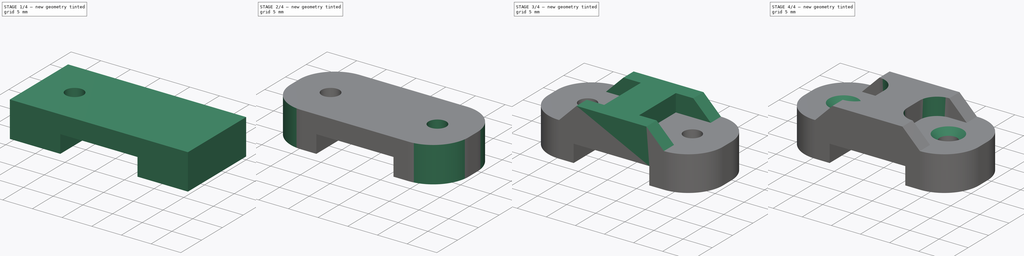
[diagram: build sequence overview — one tinted view per stage of 4, left to right]
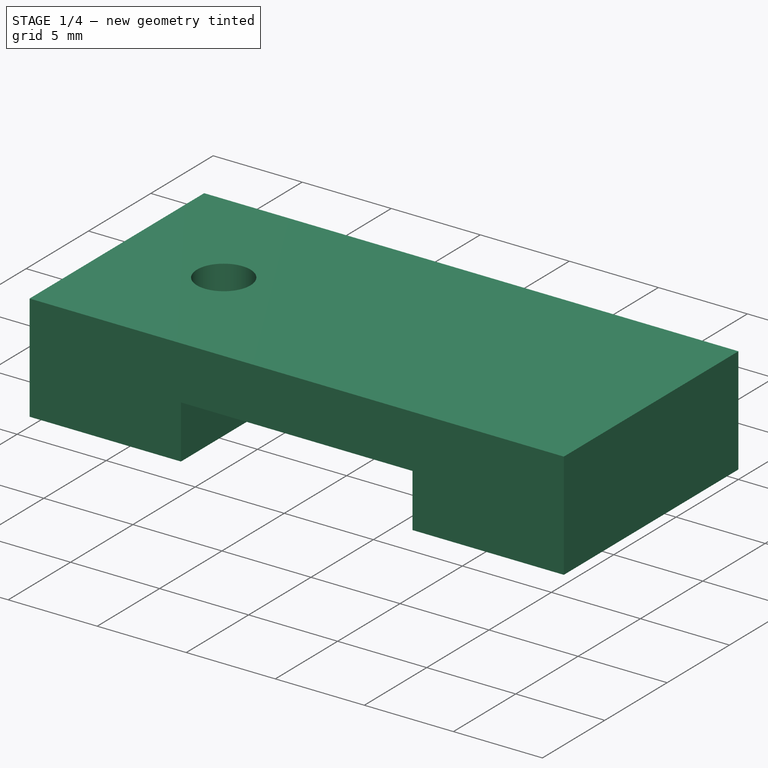
[diagram: stage 1 of 4 — iso view after this stage's code; geometry added in this stage tinted green]
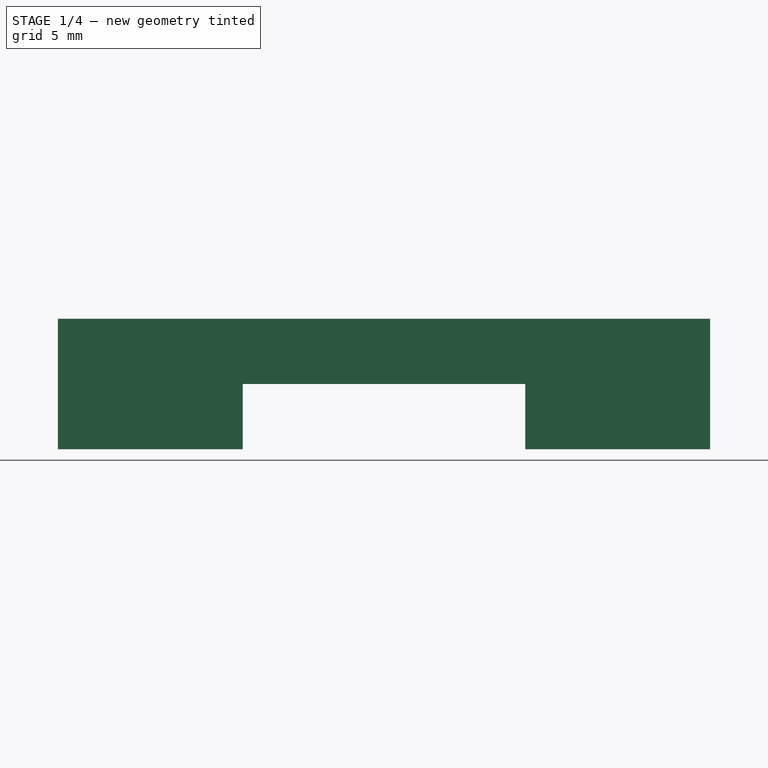
[diagram: stage 1 of 4 — front view after this stage's code; geometry added in this stage tinted green]
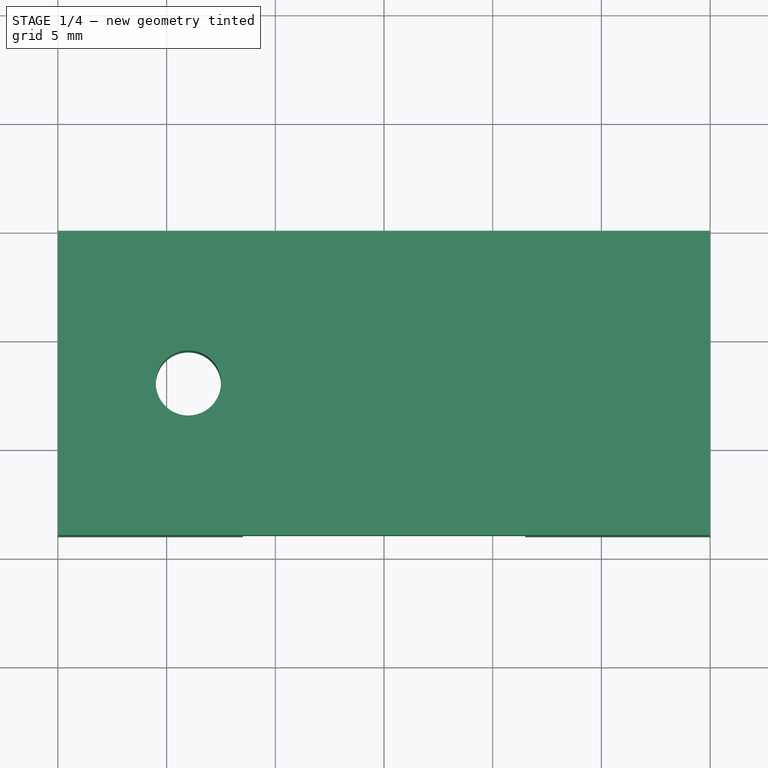
[diagram: stage 1 of 4 — top view after this stage's code; geometry added in this stage tinted green]
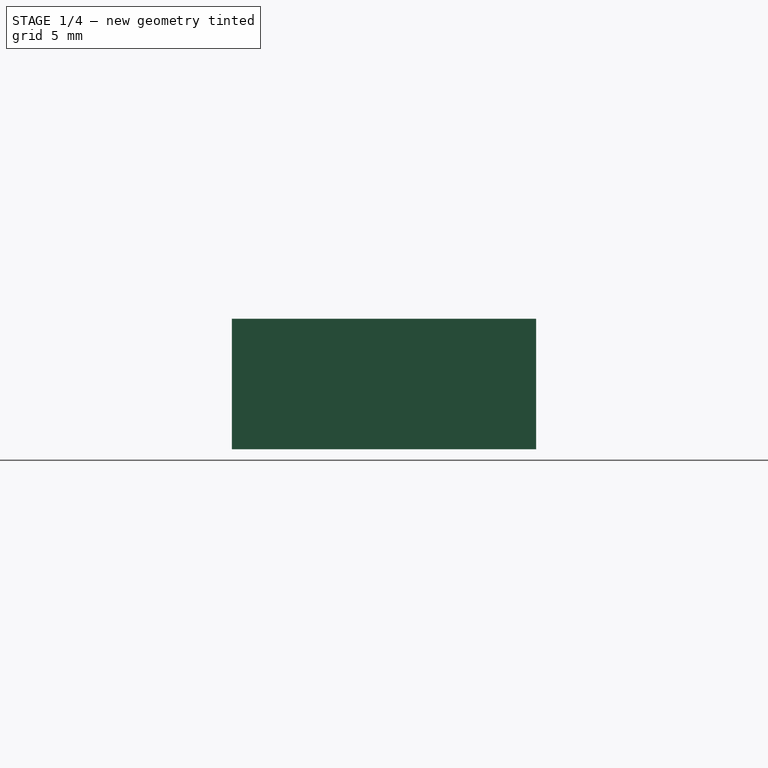
[diagram: stage 1 of 4 — right view after this stage's code; geometry added in this stage tinted green]
FCSTD DOCUMENT  (FreeCAD 1.0R38641 +468 (Git))
Label: 01GT5belttensionner
License: All rights reserved
LicenseURL: https://en.wikipedia.org/wiki/All_rights_reserved
objects: Sketcher::SketchObject×4, PartDesign::Pad×2, PartDesign::Plane×2, PartDesign::Pocket×2, PartDesign::Mirrored×2, PartDesign::Fillet×2, PartDesign::Chamfer×1, PartDesign::Body×1
note: 36 computed .brp shape members not serialized (recipe doc carries the construction recipe); baked Part::Feature solids carry a one-line shape summary decoded from their .brp

FEATURE [Sketcher::SketchObject] Sketch
  ArcFitTolerance = 1e-06
  AttachmentSupport = -> [XZ_Plane]
  FullyConstrained = false
  MakeInternals = false
  MapMode = 5
  Placement = pos=(0,0,0) rot=(1,0,0;1.5708rad)
  sketch-geometry (11):
    g0: LineSegment StartX=15 StartY=-3 StartZ=0 EndX=15 EndY=3 EndZ=0
    g1: LineSegment StartX=15 StartY=3 StartZ=0 EndX=-15 EndY=3 EndZ=0
    g2: LineSegment StartX=-15 StartY=3 StartZ=0 EndX=-15 EndY=-3 EndZ=0
    g3: GeomPoint [constr] X=3e-16 Y=0 Z=0
    g4: GeomPoint [constr] X=3e-16 Y=0 Z=0
    g5: LineSegment StartX=6.5 StartY=-3 StartZ=0 EndX=6.5 EndY=-2.092e-13 EndZ=0
    g6: LineSegment StartX=6.5 StartY=-2.092e-13 StartZ=0 EndX=-6.5 EndY=-2.092e-13 EndZ=0
    g7: LineSegment StartX=-6.5 StartY=-2.092e-13 StartZ=0 EndX=-6.5 EndY=-3 EndZ=0
    g8: GeomPoint [constr] X=0 Y=-1 Z=0
    g9: LineSegment StartX=-15 StartY=-3 StartZ=0 EndX=-6.5 EndY=-3 EndZ=0
    g10: LineSegment StartX=6.5 StartY=-3 StartZ=0 EndX=15 EndY=-3 EndZ=0
  constraints (25):
    c: Coincident(g0,g1)
    c: Coincident(g1,g2)
    c: Horizontal(g1)
    c: Vertical(g0)
    c: Vertical(g2)
    c: Symmetric(g1,g2,g3)
    c: Distance(g0,g2) = 30
    c: Coincident(g3,g-1)
    c: Coincident(g4,g3)
    c: Coincident(g5,g6)
    c: Coincident(g6,g7)
    c: Horizontal(g6)
    c: Vertical(g5)
    c: Vertical(g7)
    c: Distance(g5,g7) = 13
    c: PointOnObject(g8,g-2)
    c: Horizontal(g0,g5)
    c: Horizontal(g7,g2)
    c: Distance(g5,g5) = 3
    c: Coincident(g2,g9)
    c: Coincident(g9,g7)
    c: Coincident(g5,g10)
    c: Coincident(g10,g0)
    c: Symmetric(g7,g5,g-2)
    c: DistanceY(g5,g0) = 3
FEATURE [PartDesign::Pad] Pad
  Direction = (0,-1,2e-16)
  Length = 14
  Length2 = 10
  Placement = pos=(0,0,0) rot=(1,0,0;1.5708rad)
  Profile = -> Sketch
  ReferenceAxis = -> Sketch [N_Axis]
  Refine = true
  Suppressed = false
  Type = 0
FEATURE [PartDesign::Plane] DatumPlane
  AttachmentSupport = -> [Pad]
  Length = 60
  MapMode = 5
  Placement = pos=(0,7e-16,3) rot=(0,0,1;3.14159rad)
  ResizeMode = 0
  Width = 60
FEATURE [Sketcher::SketchObject] Sketch001
  ArcFitTolerance = 1e-06
  AttachmentSupport = -> [DatumPlane]
  ExternalGeometry = -> [Pad]
  FullyConstrained = true
  MakeInternals = false
  MapMode = 5
  Placement = pos=(0,7e-16,3) rot=(0,0,1;3.14159rad)
  sketch-geometry (2):
    g0: Circle CenterX=9 CenterY=7 CenterZ=0 NormalX=0 NormalY=0 NormalZ=1 AngleXU=0 Radius=1.5
    g1: GeomPoint X=15 Y=7 Z=0
  constraints (4):
    c: Symmetric(g-3,g-3,g1)
    c: Horizontal(g0,g1)
    c: Diameter(g0) = 3
    c: DistanceX(g-1,g0) = 9
FEATURE [PartDesign::Pocket] Pocket
  BaseFeature = -> Pad
  Direction = (0,0,-1)
  Length = 5
  Length2 = 5
  Placement = pos=(0,0,0) rot=(1,0,0;1.5708rad)
  Profile = -> Sketch001
  ReferenceAxis = -> Sketch001 [N_Axis]
  Refine = true
  Suppressed = false
  Type = 1
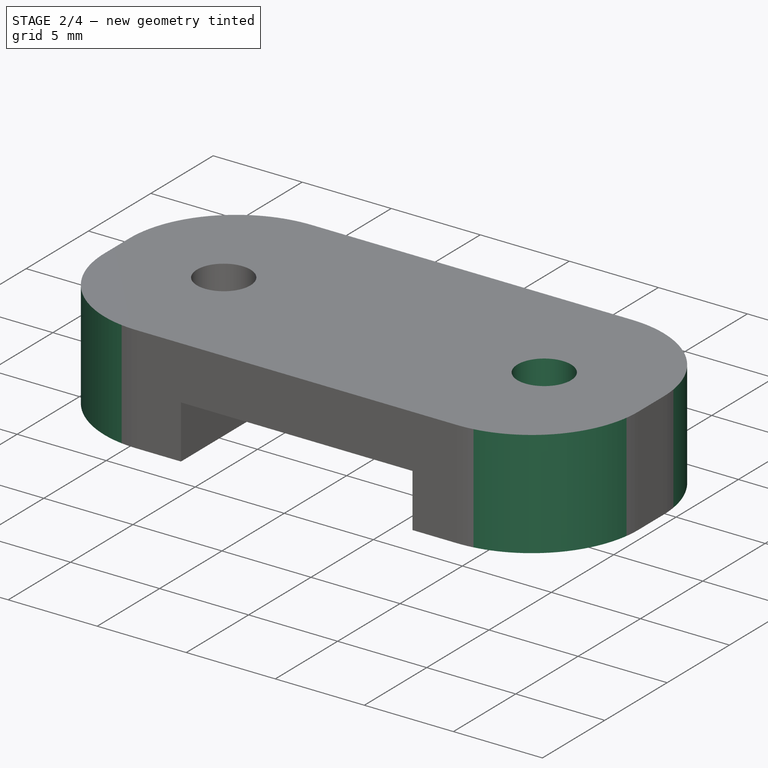
[diagram: stage 2 of 4 — iso view after this stage's code; geometry added in this stage tinted green]
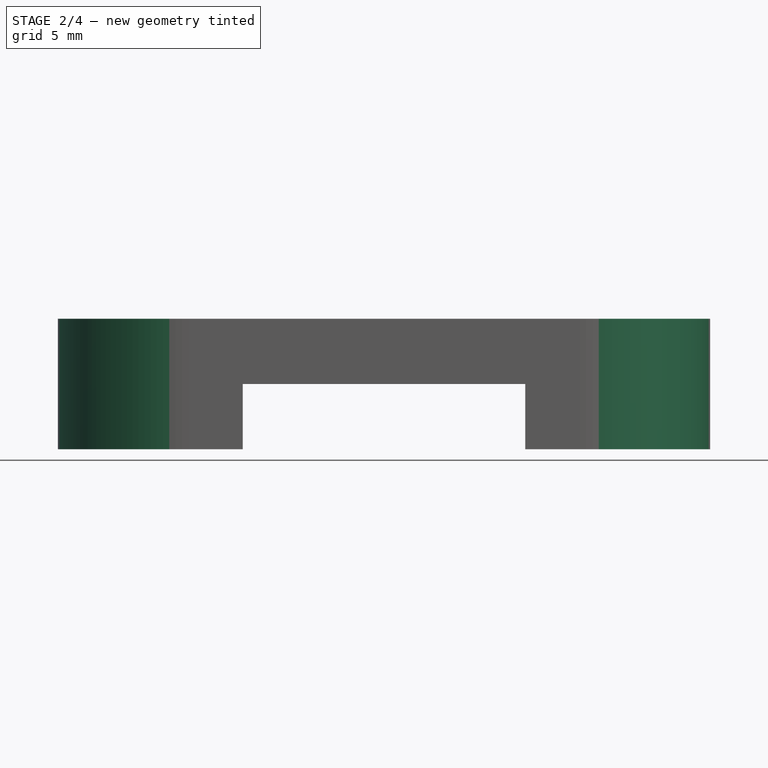
[diagram: stage 2 of 4 — front view after this stage's code; geometry added in this stage tinted green]
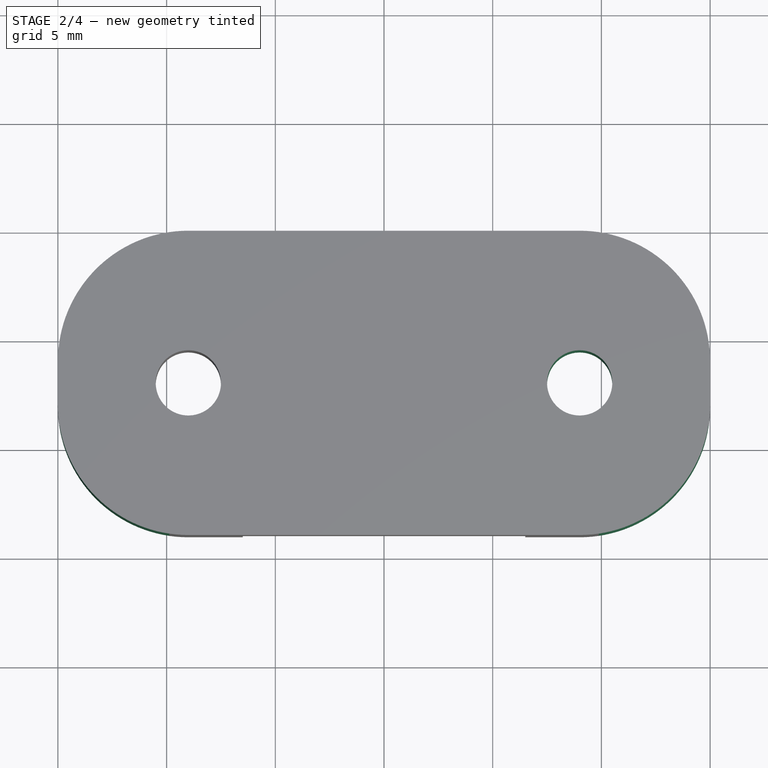
[diagram: stage 2 of 4 — top view after this stage's code; geometry added in this stage tinted green]
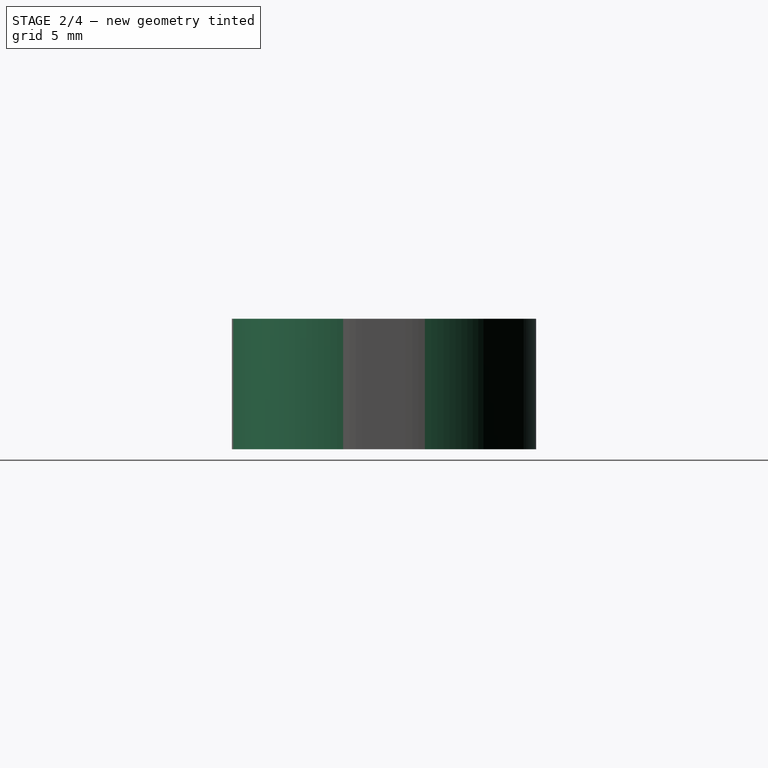
[diagram: stage 2 of 4 — right view after this stage's code; geometry added in this stage tinted green]
FEATURE [PartDesign::Mirrored] Mirrored
  BaseFeature = -> Pocket
  MirrorPlane = -> Sketch001 [V_Axis]
  Originals = -> [Pocket]
  Placement = pos=(0,0,0) rot=(1,0,0;1.5708rad)
  Refine = true
  Suppressed = false
  TransformMode = 0
FEATURE [PartDesign::Fillet] Fillet
  Base = -> Mirrored [Edge17,Edge15,Edge9,Edge11]
  BaseFeature = -> Mirrored
  Placement = pos=(0,0,0) rot=(1,0,0;1.5708rad)
  Radius = 6
  Refine = true
  SupportTransform = false
  Suppressed = false
  UseAllEdges = false
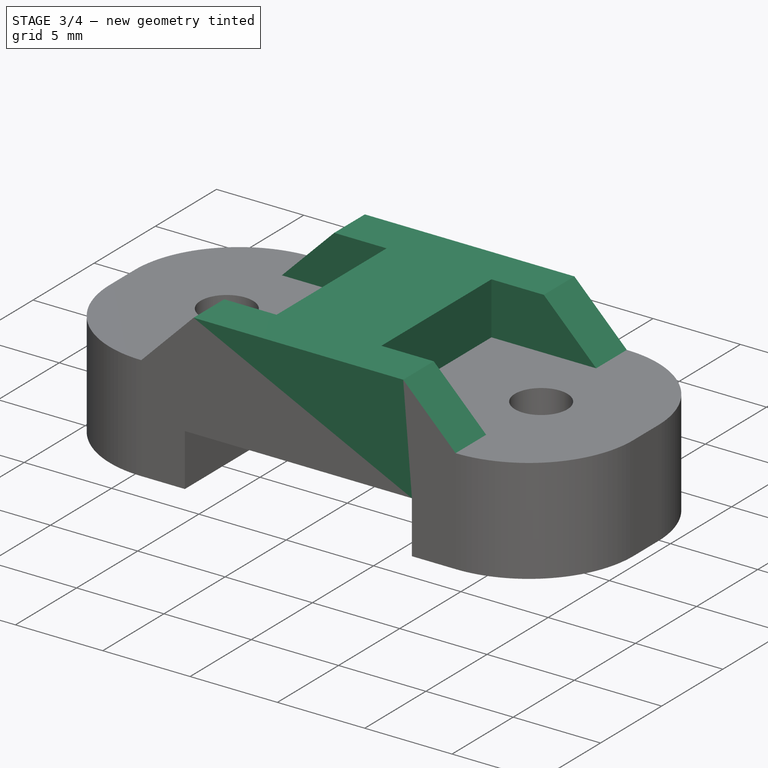
[diagram: stage 3 of 4 — iso view after this stage's code; geometry added in this stage tinted green]
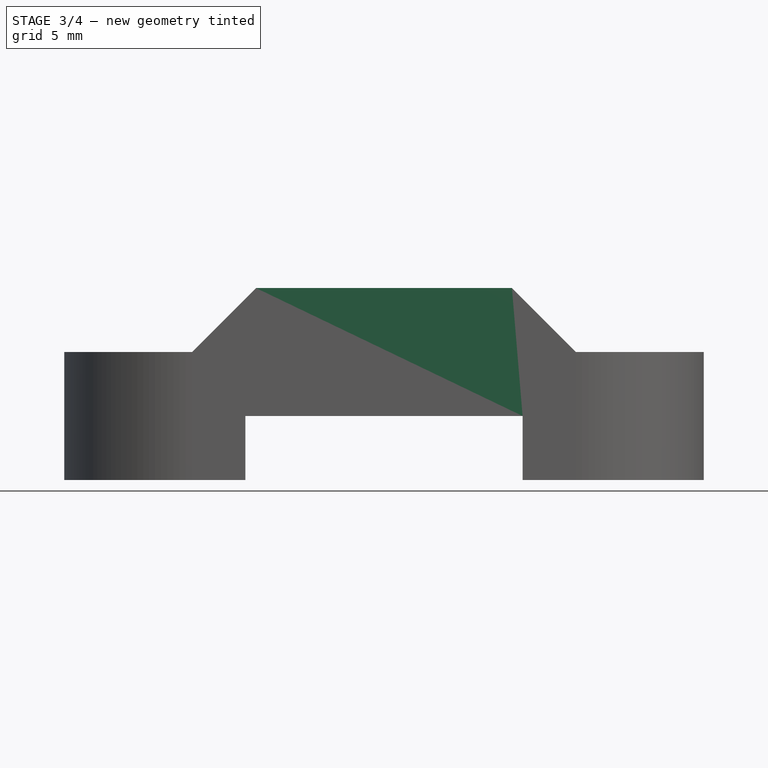
[diagram: stage 3 of 4 — front view after this stage's code; geometry added in this stage tinted green]
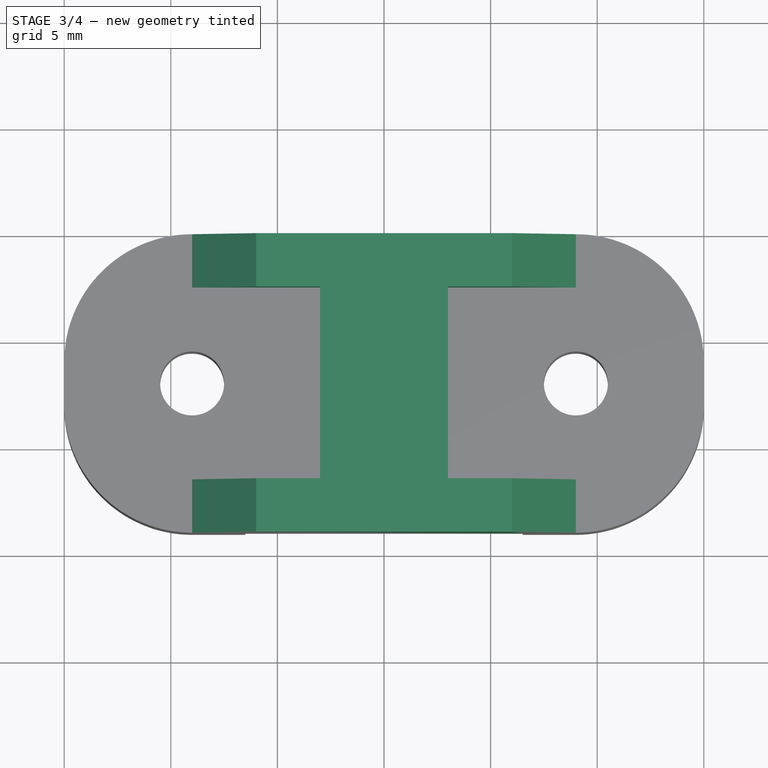
[diagram: stage 3 of 4 — top view after this stage's code; geometry added in this stage tinted green]
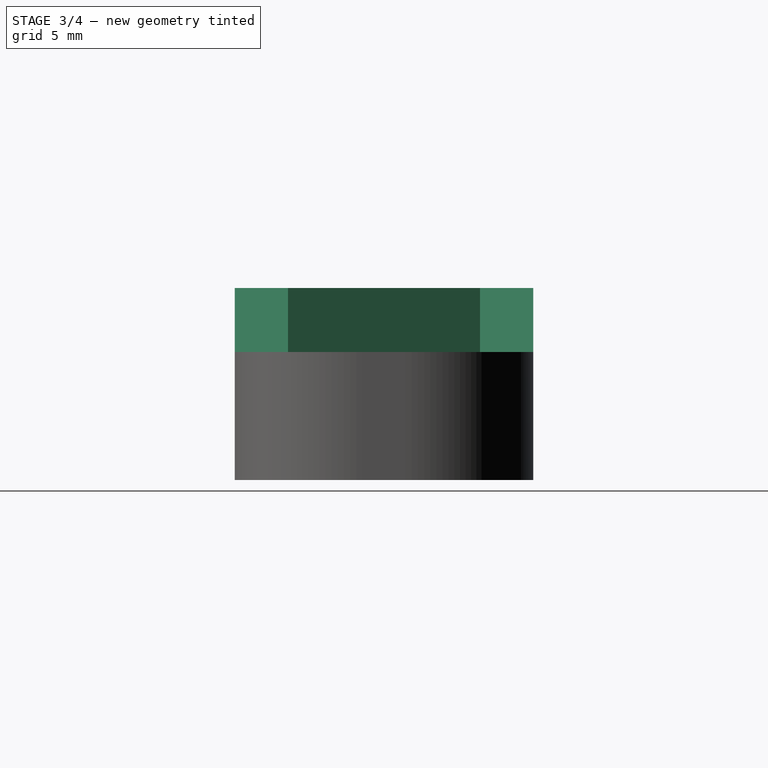
[diagram: stage 3 of 4 — right view after this stage's code; geometry added in this stage tinted green]
FEATURE [Sketcher::SketchObject] Sketch002
  ArcFitTolerance = 1e-06
  AttachmentSupport = -> [XZ_Plane]
  ExternalGeometry = -> [Fillet]
  FullyConstrained = true
  MakeInternals = false
  MapMode = 5
  Placement = pos=(0,0,0) rot=(1,0,0;1.5708rad)
  sketch-geometry (4):
    g0: LineSegment StartX=-9 StartY=3 StartZ=0 EndX=-6 EndY=6 EndZ=0
    g1: LineSegment StartX=-6 StartY=6 StartZ=0 EndX=6 EndY=6 EndZ=0
    g2: LineSegment StartX=6 StartY=6 StartZ=0 EndX=9 EndY=3 EndZ=0
    g3: LineSegment StartX=9 StartY=3 StartZ=0 EndX=-9 EndY=3 EndZ=0
  constraints (9):
    c: Coincident(g-3,g0)
    c: Coincident(g0,g1)
    c: Coincident(g1,g2)
    c: Coincident(g2,g-3)
    c: Coincident(g2,g3)
    c: Coincident(g3,g0)
    c: Symmetric(g1,g0,g-2)
    c: DistanceY(g2,g2) = 3
    c: DistanceX(g1,g2) = 3
FEATURE [PartDesign::Pad] Pad001
  BaseFeature = -> Fillet
  Direction = (0,-1,2e-16)
  Length = 14
  Length2 = 10
  Placement = pos=(0,0,0) rot=(1,0,0;1.5708rad)
  Profile = -> Sketch002
  ReferenceAxis = -> Sketch002 [N_Axis]
  Refine = true
  Suppressed = false
  Type = 0
FEATURE [PartDesign::Plane] DatumPlane001
  AttachmentOffset = pos=(0,0,-7) rot=(0,0,1;0rad)
  AttachmentSupport = -> [Pad001]
  Length = 60
  MapMode = 5
  Placement = pos=(0,-7,-1.6e-15) rot=(-1,0,0;1.5708rad)
  ResizeMode = 0
  Width = 60
FEATURE [Sketcher::SketchObject] Sketch003
  ArcFitTolerance = 1e-06
  AttachmentSupport = -> [DatumPlane001]
  ExternalGeometry = -> [Pad001]
  FullyConstrained = false
  MakeInternals = false
  MapMode = 5
  Placement = pos=(0,-7,-1.6e-15) rot=(-1,0,0;1.5708rad)
  sketch-geometry (4):
    g0: LineSegment StartX=15 StartY=-3 StartZ=0 EndX=3 EndY=-3 EndZ=0
    g1: LineSegment StartX=3 StartY=-3 StartZ=0 EndX=3 EndY=-11.8992 EndZ=0
    g2: LineSegment StartX=3 StartY=-11.8992 StartZ=0 EndX=15 EndY=-11.8992 EndZ=0
    g3: LineSegment StartX=15 StartY=-11.8992 StartZ=0 EndX=15 EndY=-3 EndZ=0
  constraints (10):
    c: Coincident(g0,g1)
    c: Coincident(g1,g2)
    c: Coincident(g2,g3)
    c: Coincident(g3,g0)
    c: Horizontal(g0)
    c: Horizontal(g2)
    c: Vertical(g1)
    c: Vertical(g3)
    c: Coincident(g0,g-3)
    c: DistanceX(g-1,g0) = 3
FEATURE [PartDesign::Pocket] Pocket001
  BaseFeature = -> Pad001
  Direction = (0,-1,-2e-16)
  Length = 9
  Length2 = 5
  Midplane = true
  Placement = pos=(0,0,0) rot=(1,0,0;1.5708rad)
  Profile = -> Sketch003
  ReferenceAxis = -> Sketch003 [N_Axis]
  Refine = true
  Suppressed = false
  Type = 0
FEATURE [PartDesign::Mirrored] Mirrored001
  BaseFeature = -> Pocket001
  MirrorPlane = -> Sketch003 [V_Axis]
  Originals = -> [Pocket001]
  Placement = pos=(0,0,0) rot=(1,0,0;1.5708rad)
  Refine = true
  Suppressed = false
  TransformMode = 0
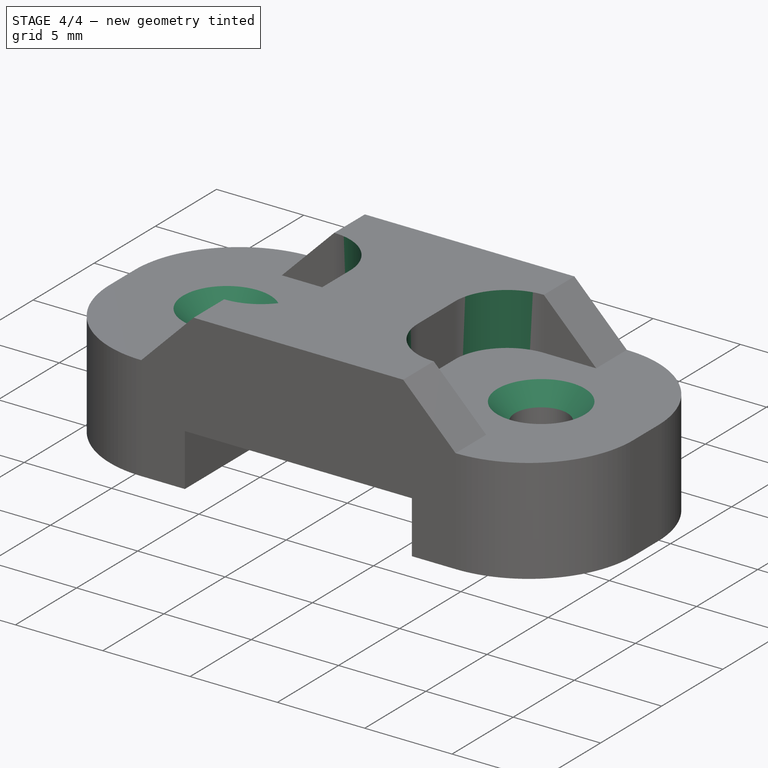
[diagram: stage 4 of 4 — iso view after this stage's code; geometry added in this stage tinted green]
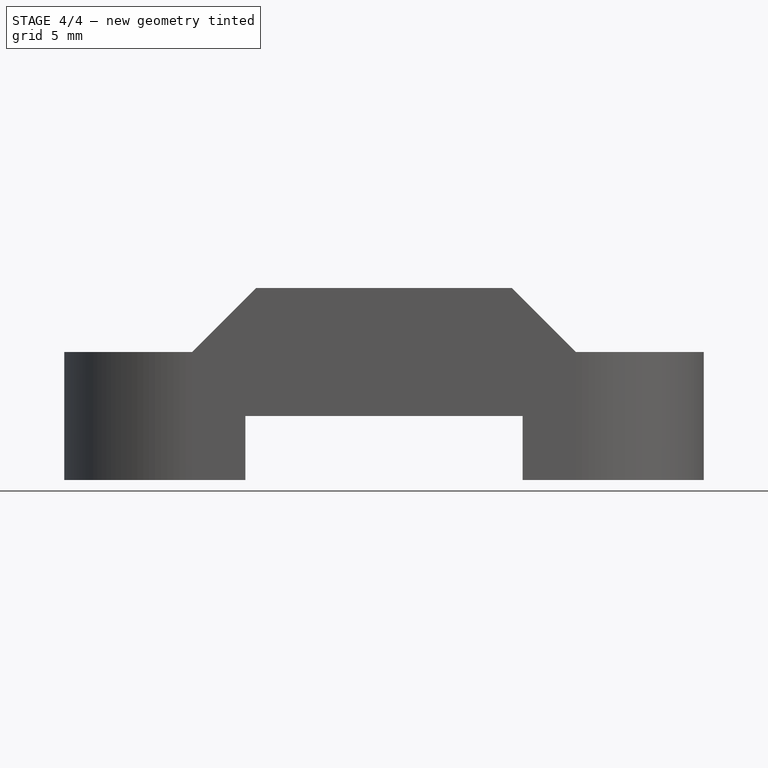
[diagram: stage 4 of 4 — front view after this stage's code; geometry added in this stage tinted green]
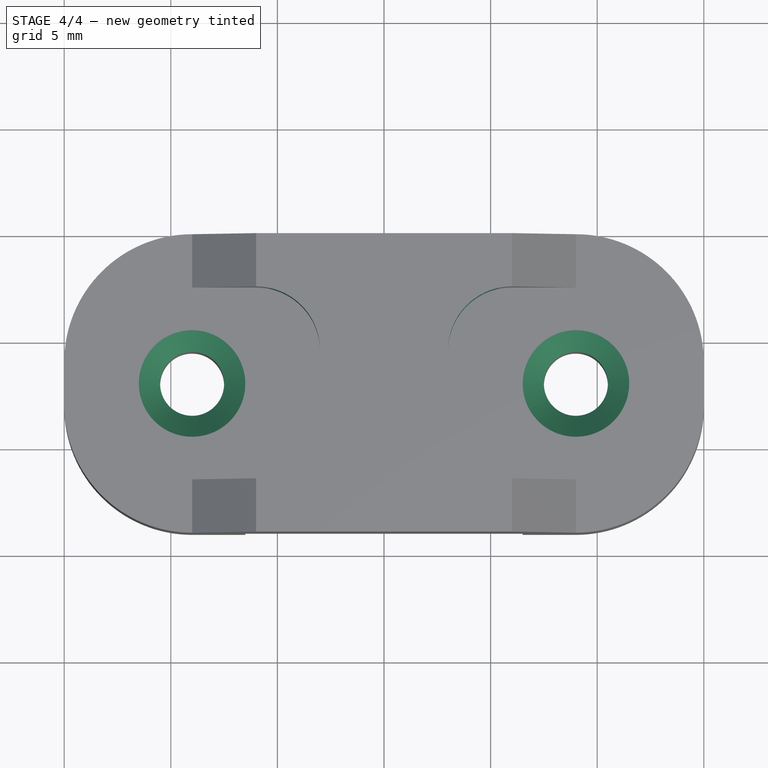
[diagram: stage 4 of 4 — top view after this stage's code; geometry added in this stage tinted green]
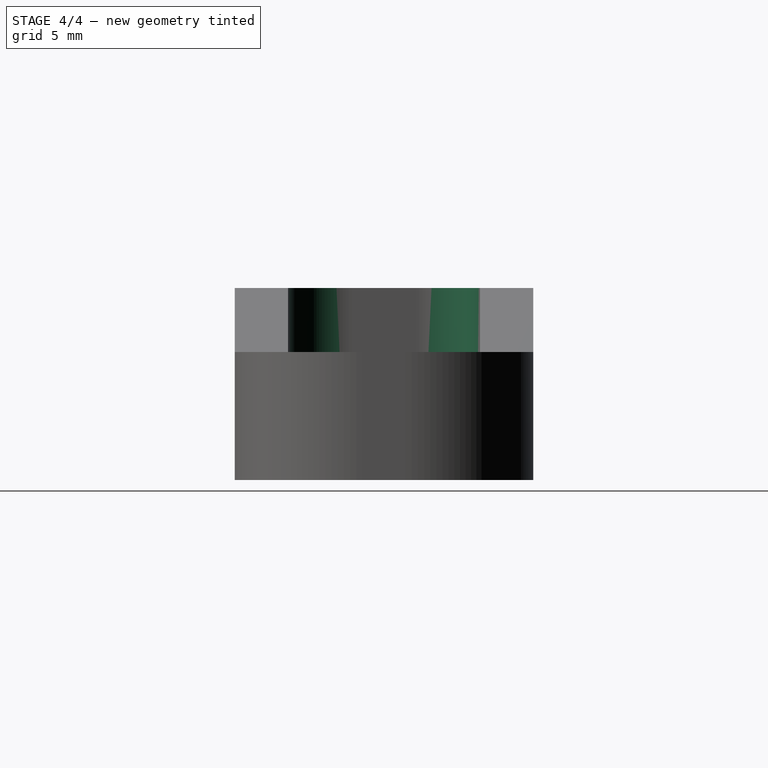
[diagram: stage 4 of 4 — right view after this stage's code; geometry added in this stage tinted green]
FEATURE [PartDesign::Fillet] Fillet001
  Base = -> Mirrored001 [Edge62,Edge51,Edge24,Edge49]
  BaseFeature = -> Mirrored001
  Placement = pos=(0,0,0) rot=(1,0,0;1.5708rad)
  Radius = 3
  Refine = true
  SupportTransform = false
  Suppressed = false
  UseAllEdges = false
FEATURE [PartDesign::Chamfer] Chamfer
  Angle = 45
  Base = -> Fillet001 [Edge84,Edge60]
  BaseFeature = -> Fillet001
  ChamferType = 0
  FlipDirection = false
  Placement = pos=(0,0,0) rot=(1,0,0;1.5708rad)
  Refine = true
  Size = 1
  Size2 = 1
  SupportTransform = false
  Suppressed = false
  UseAllEdges = false
FEATURE [PartDesign::Body] Body
  AllowCompound = false
  Group = -> [Sketch,Pad,DatumPlane,Sketch001,Pocket,Mirrored,Fillet,Sketch002,Pad001,DatumPlane001,Sketch003,Pocket001,Mirrored001,Fillet001,Chamfer]
  Origin = -> Origin
  Tip = -> Chamfer
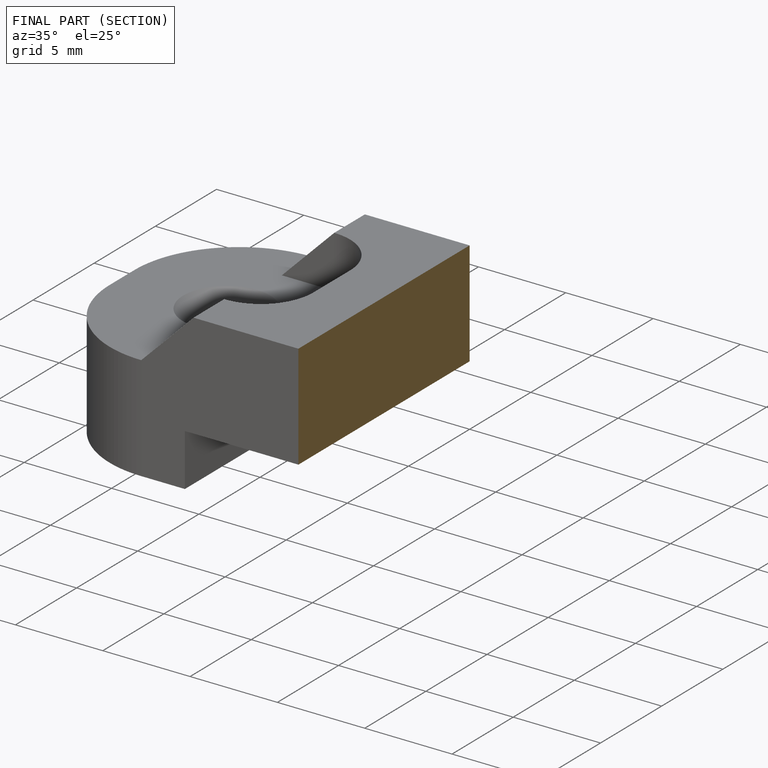
[diagram: finished part — half-section view (interior)]
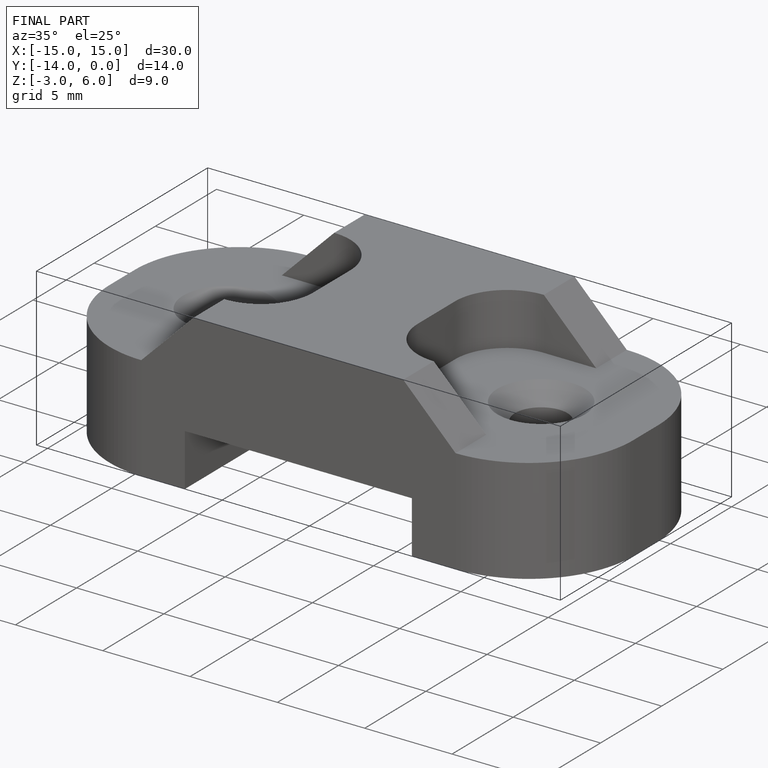
[diagram: finished part — iso view with bounding-box wireframe]
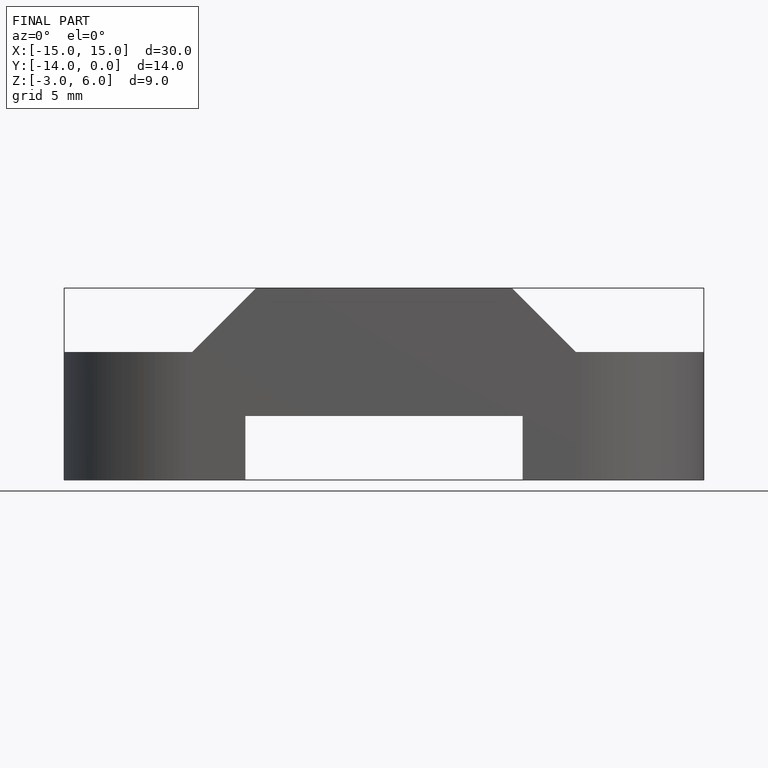
[diagram: finished part — front view with bounding-box wireframe]
